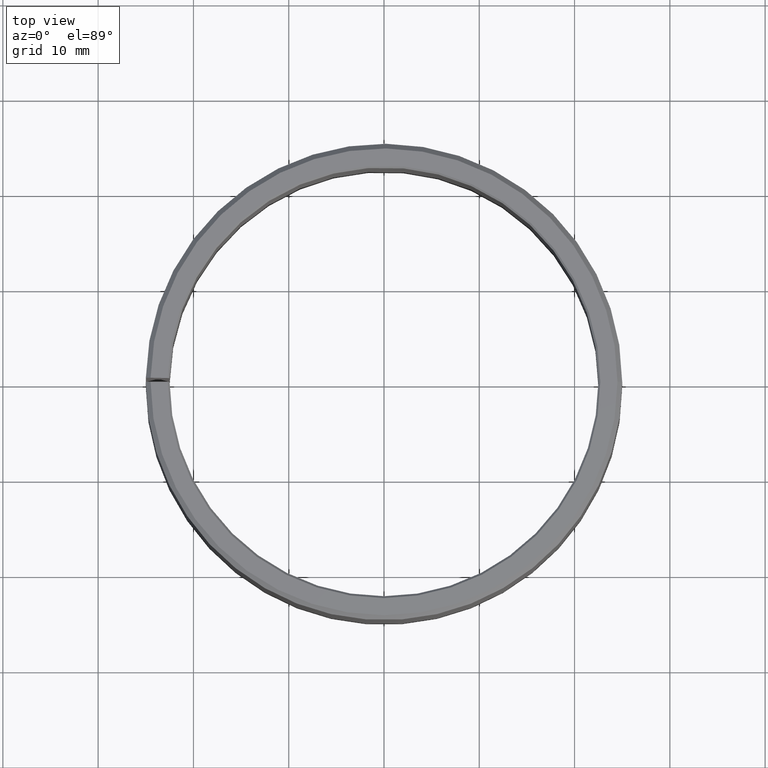
[diagram: clean part render]
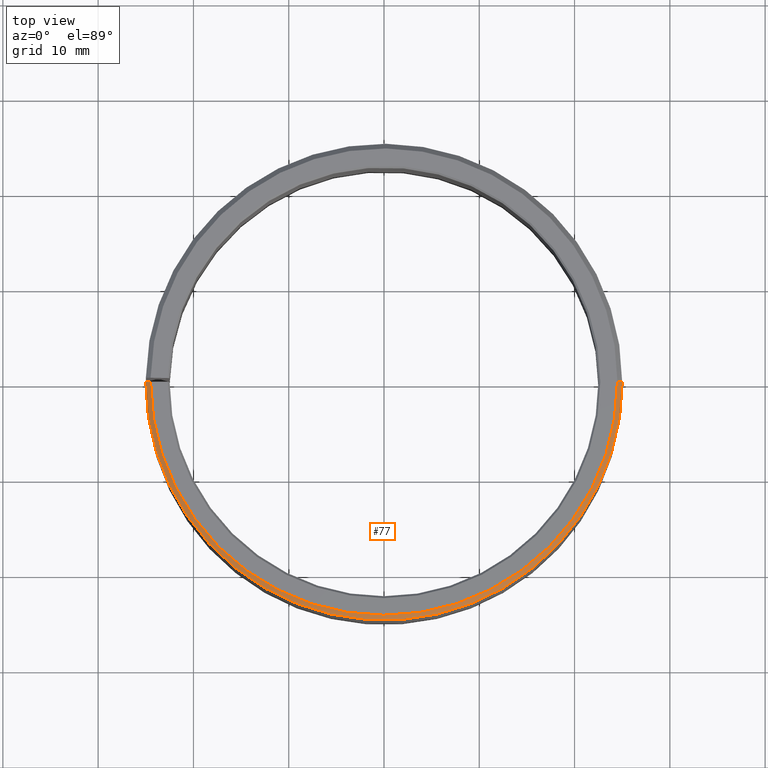
[diagram: same view with one face highlighted and labeled with its STEP entity id]
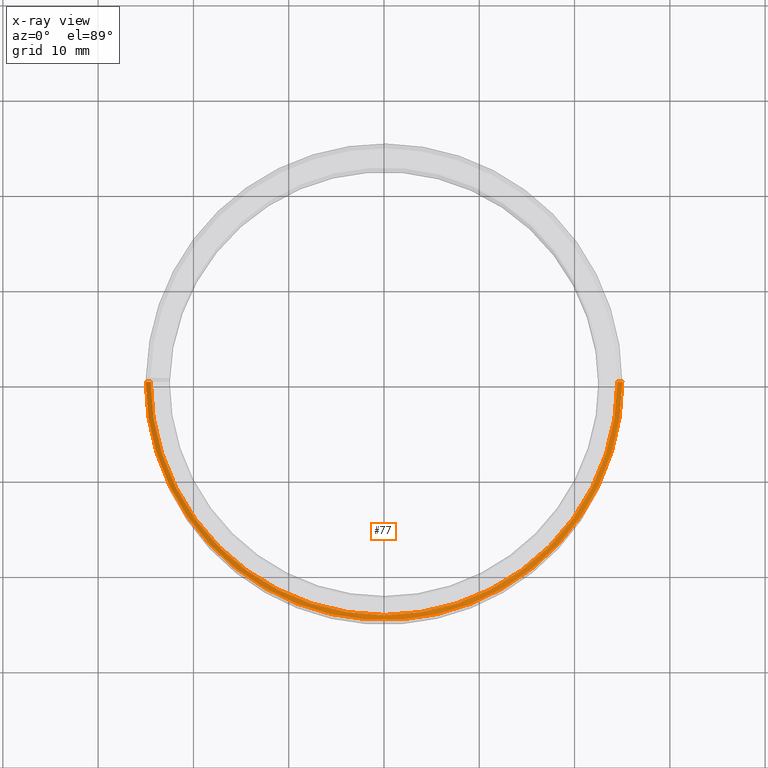
[diagram: x-ray of the same camera — body ghosted, the highlighted face saturated]
A machine part, top view. The second image highlights one B-rep face of the part: STEP entity #77.
The next image is the same camera in x-ray: the body ghosted, the highlighted face saturated — about 0% of this face is hidden behind the body in this view.
In plain terms, the highlighted conical surface has half-angle 45 deg.
Its self-contained STEP definition (entity closure, byte-faithful):
#77=ADVANCED_FACE('',(#96),#97,.T.);
#96=FACE_OUTER_BOUND('',#128,.T.);
#97=CONICAL_SURFACE('',#129,24.75,0.785398163397444);
#128=EDGE_LOOP('',(#170,#171,#172,#173));
#129=AXIS2_PLACEMENT_3D('',#174,#175,#176);
#170=ORIENTED_EDGE('',*,*,#287,.F.);
#171=ORIENTED_EDGE('',*,*,#288,.F.);
#172=ORIENTED_EDGE('',*,*,#289,.F.);
#173=ORIENTED_EDGE('',*,*,#290,.T.);
#174=CARTESIAN_POINT('',(1.77875680559374E-014,-2.0413651697615E-014,29.75));
#175=DIRECTION('',(-5.48707263966372E-016,6.09939603923743E-016,-1.0));
#176=DIRECTION('',(-1.0,-3.21624529935327E-016,5.48707263966372E-016));
#287=EDGE_CURVE('',#331,#332,#333,.T.);
#288=EDGE_CURVE('',#334,#331,#335,.T.);
#289=EDGE_CURVE('',#336,#334,#337,.T.);
#290=EDGE_CURVE('',#336,#332,#338,.T.);
#331=VERTEX_POINT('',#397);
#332=VERTEX_POINT('',#398);
#333=LINE('',#399,#400);
#334=VERTEX_POINT('',#401);
#335=CIRCLE('',#402,24.5);
#336=VERTEX_POINT('',#403);
#337=LINE('',#404,#405);
#338=CIRCLE('',#406,25.0);
#397=CARTESIAN_POINT('',(24.5,-1.56867202730914E-014,30.0));
#398=CARTESIAN_POINT('',(25.0,-1.50751245358653E-014,29.5));
#399=CARTESIAN_POINT('',(24.75,-1.54844454096053E-014,29.75));
#400=VECTOR('',#477,1.0);
#401=CARTESIAN_POINT('',(-24.5,-2.82654872890399E-014,30.0));
#402=AXIS2_PLACEMENT_3D('',#478,#479,#480);
#403=CARTESIAN_POINT('',(-25.0,-2.76274505796904E-014,29.5));
#404=CARTESIAN_POINT('',(-25.0,-2.76274505796904E-014,29.5));
#405=VECTOR('',#481,9.99999999999999);
#406=AXIS2_PLACEMENT_3D('',#482,#483,#484);
#477=DIRECTION('',(0.707106781186544,5.72119710538373E-016,-0.707106781186551));
#478=CARTESIAN_POINT('',(1.7924744871929E-014,-2.05508285136066E-014,30.0));
#479=DIRECTION('',(5.48707263966372E-016,-6.09939603923743E-016,1.0));
#480=DIRECTION('',(-1.0,-3.21624529935327E-016,5.48707263966372E-016));
#481=DIRECTION('',(0.707106781186545,-1.60571741123738E-016,0.70710678118655));
#482=CARTESIAN_POINT('',(1.76503912399458E-014,-2.02764748816234E-014,29.5));
#483=DIRECTION('',(5.48707263966372E-016,-6.09939603923743E-016,1.0));
#484=DIRECTION('',(-1.0,-3.21624529935327E-016,5.48707263966372E-016));